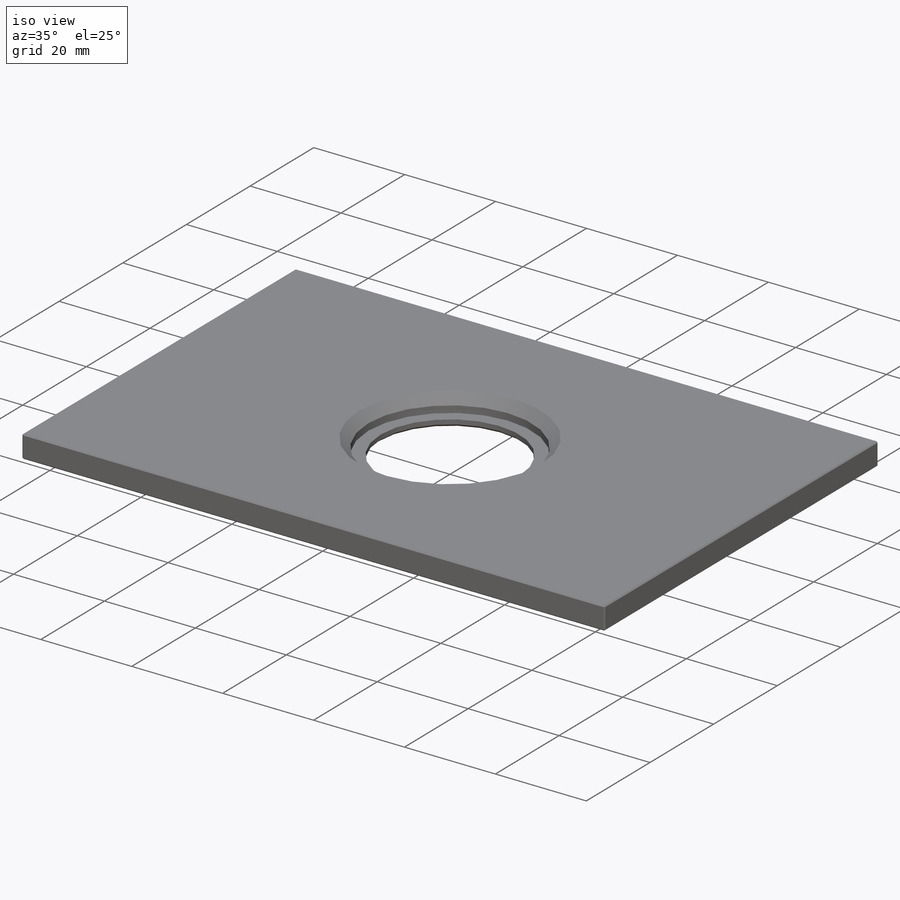
[diagram: iso view]
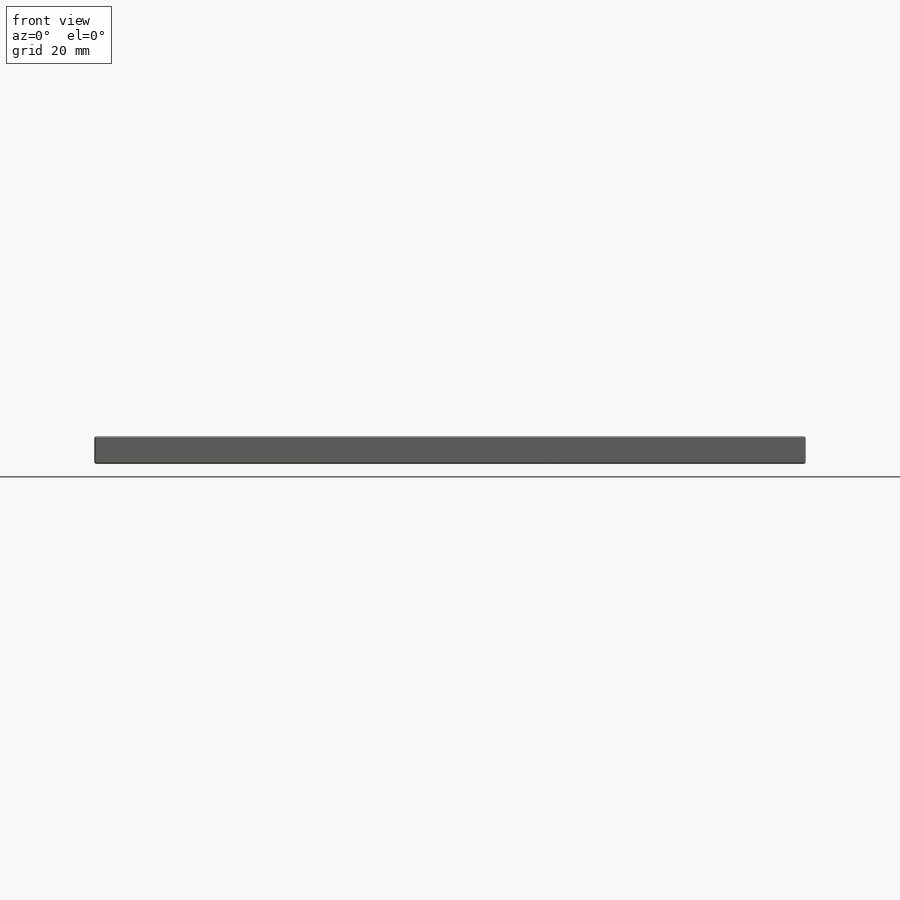
[diagram: front view]
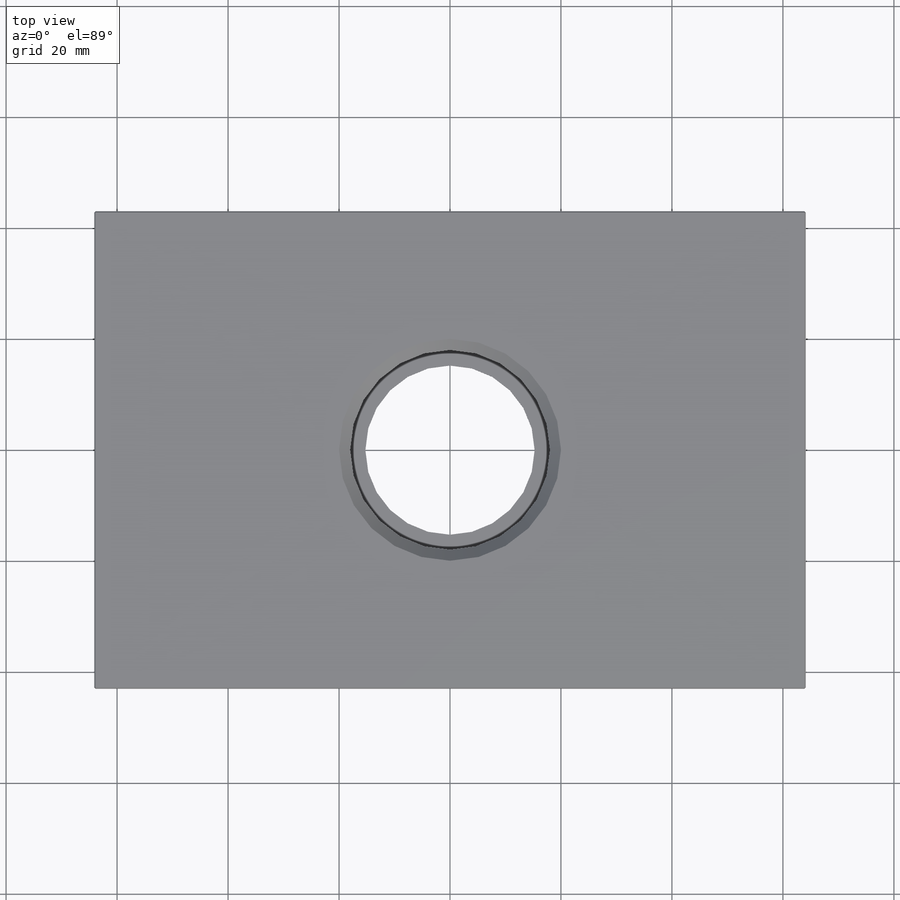
[diagram: top view]
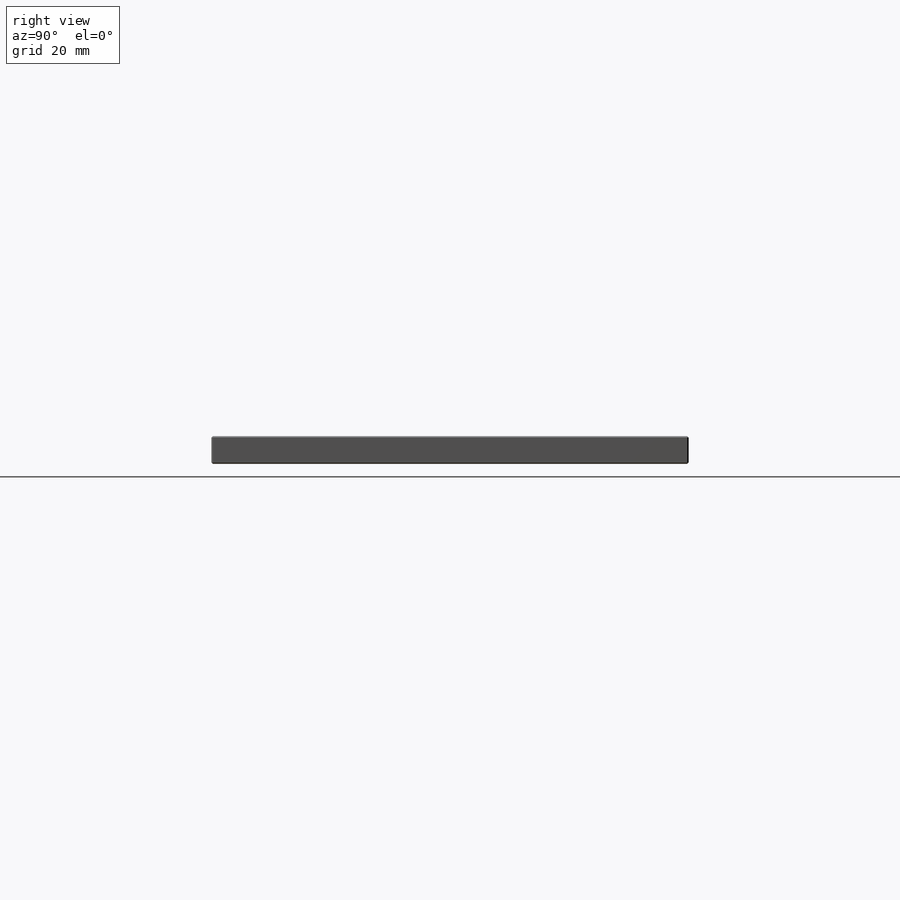
[diagram: right view]
SOLIDWORKS PART (.sldprt)
format: sldprt  version: not decoded by parser v0  size: 177,664 bytes
history: native  units: mm
features: sketch x3, chamfer x3, cut_extrude x2, material x1, extrude x1 (+13 scaffold rows collapsed)
feature tree (23):
  scaffold x13  (default folders/planes/origin — collapsed)
  material  "Material <not specified>"
  sketch  "Sketch1"  dims[D1=128.2mm D2=86.0mm]
  extrude  "Extrude1"  Depth=5mm
  sketch  "Sketch4"  dims[D1=36.0mm]
  cut_extrude  "Extrude4"  Depth=3.5mm
  sketch  "Sketch6"  dims[D1=30.5mm]
  cut_extrude  "Extrude6"  [1 undecoded]
  chamfer  "Chamfer5"  Distance=0.5mm Angle=45deg
  chamfer  "Chamfer6"  Distance=2mm Angle=45deg
  chamfer  "Chamfer7"  Distance=0.25mm Angle=45deg
decode coverage: 8 of 9 modeling features carry decoded parameters
note: 1 parameter value undecoded
note: suppression state not decoded; provenance and decode notes live in map.json
